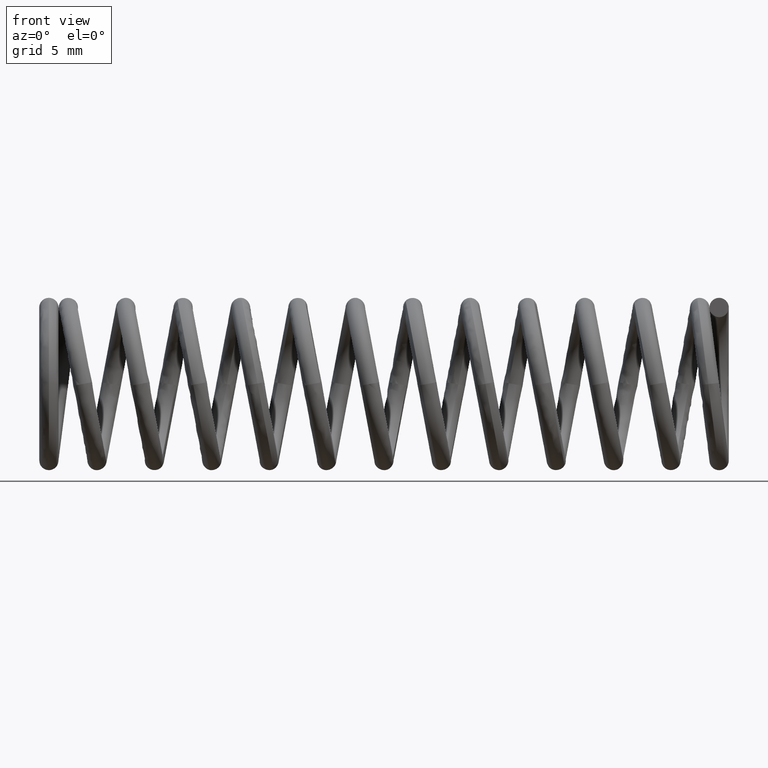
[diagram: clean part render]
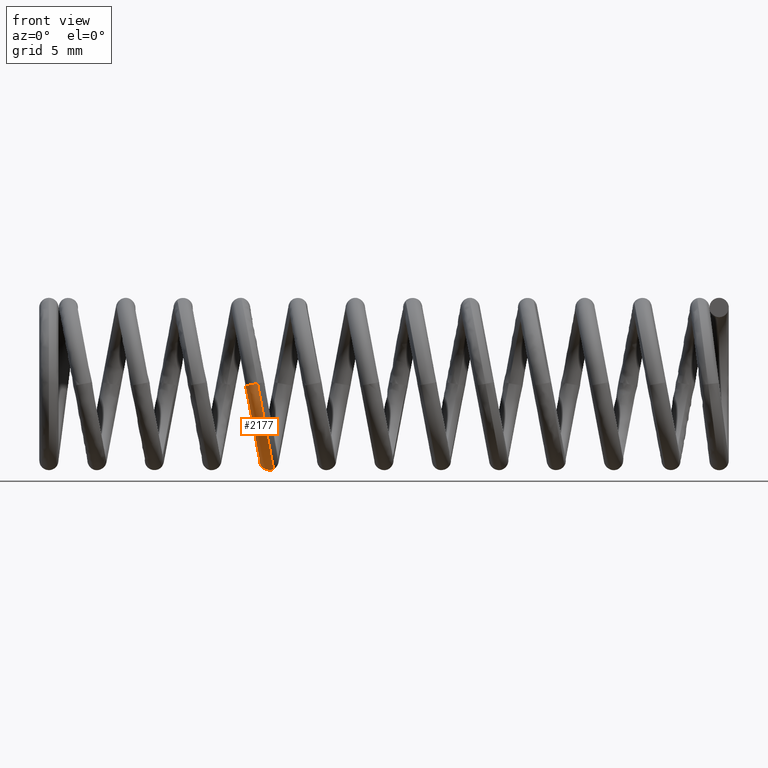
[diagram: same view with one face highlighted and labeled with its STEP entity id]
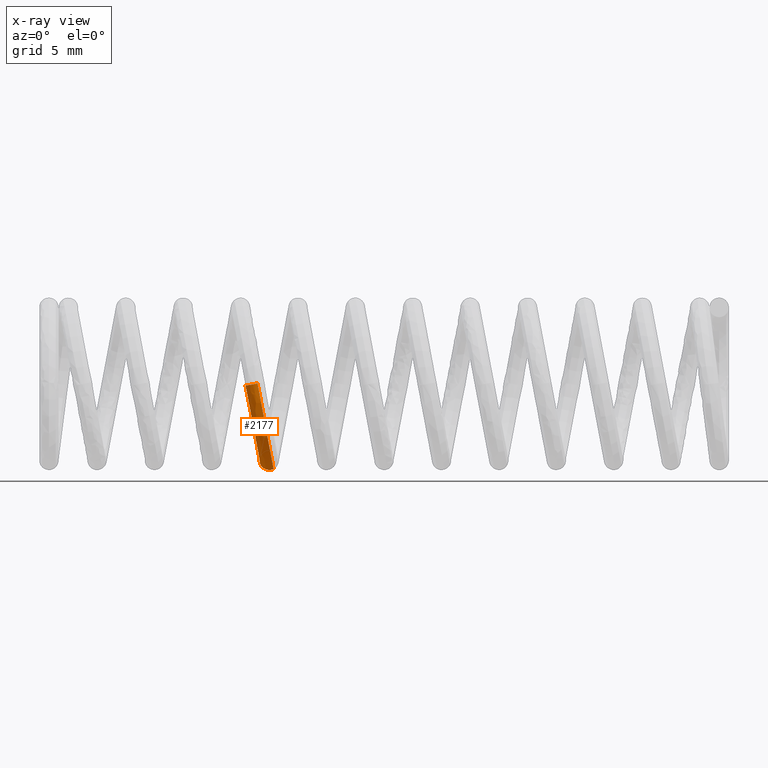
[diagram: x-ray of the same camera — body ghosted, the highlighted face saturated]
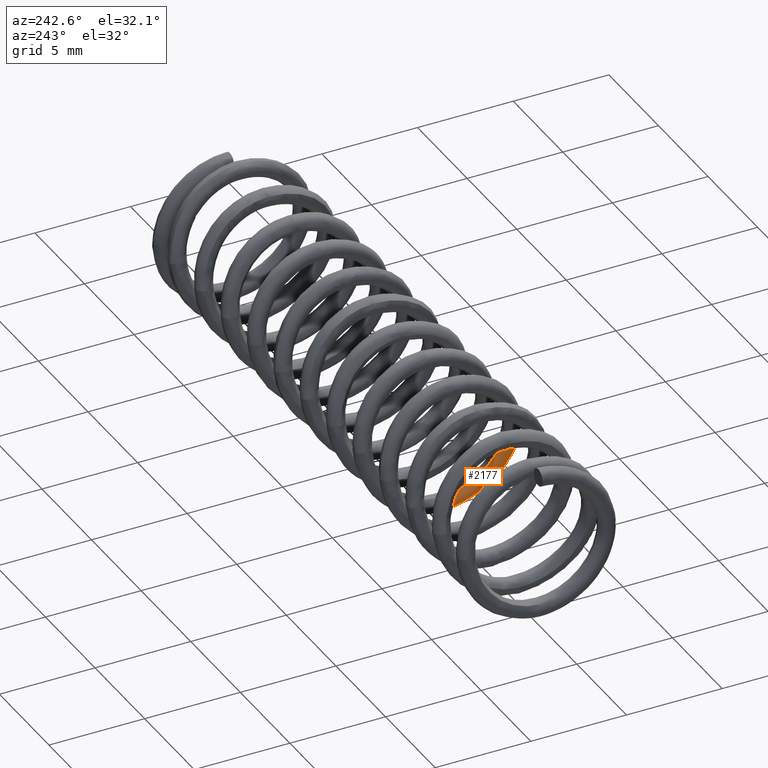
[diagram: same view with one face highlighted and labeled with its STEP entity id]
A machine part, front view. The second image highlights one B-rep face of the part: STEP entity #2177.
The next image is the same camera in x-ray: the body ghosted, the highlighted face saturated — about 0% of this face is hidden behind the body in this view.
A second angle (auxiliary view) of the same face is appended — the face is thin or edge-on in the first view.
In plain terms, the highlighted face is a freeform B-spline surface patch.
Its self-contained STEP definition (entity closure, byte-faithful):
#2177=ADVANCED_FACE('',(#3027),#3026,.T.);
#3026=( BOUNDED_SURFACE() B_SPLINE_SURFACE( 3,3,((#6223,#6224,#6225,#6226,#6227,#6228),(#6229,#6230,#6231,#6232,#6233,#6234),(#6235,#6236,#6237,#6238,#6239,#6240),(#6241,#6242,#6243,#6244,#6245,#6246),(#6247,#6248,#6249,#6250,#6251,#6252),(#6253,#6254,#6255,#6256,#6257,#6258)), .UNSPECIFIED.,.F.,.F.,.F.) B_SPLINE_SURFACE_WITH_KNOTS((4,2,4),(4,2,4),(5.00000000000E-01,7.50000000000E-01,1.00000000000E+00),(3.26745105537E-01,3.36370377522E-01,3.45995649507E-01), .UNSPECIFIED. ) GEOMETRIC_REPRESENTATION_ITEM() RATIONAL_B_SPLINE_SURFACE(((1.00000000000E+00,1.00000000000E+00,1.00000000000E+00,1.00000000000E+00,1.00000000000E+00,1.00000000000E+00),(1.00000000000E+00,1.00000000000E+00,1.00000000000E+00,1.00000000000E+00,1.00000000000E+00,1.00000000000E+00),(1.00000000000E+00,1.00000000000E+00,1.00000000000E+00,1.00000000000E+00,1.00000000000E+00,1.00000000000E+00),(1.00000000000E+00,1.00000000000E+00,1.00000000000E+00,1.00000000000E+00,1.00000000000E+00,1.00000000000E+00),(1.00000000000E+00,1.00000000000E+00,1.00000000000E+00,1.00000000000E+00,1.00000000000E+00,1.00000000000E+00),(1.00000000000E+00,1.00000000000E+00,1.00000000000E+00,1.00000000000E+00,1.00000000000E+00,1.00000000000E+00))) REPRESENTATION_ITEM('') SURFACE() );
#3027=FACE_OUTER_BOUND('',#6259,.T.);
#6223=CARTESIAN_POINT('',(-2.14197527614E+01,-3.98212175902E+00,2.31528256215E-02));
#6224=CARTESIAN_POINT('',(-2.12244826400E+01,-3.98212175902E+00,-1.01784352133E+00));
#6225=CARTESIAN_POINT('',(-2.10311850241E+01,-3.55487822266E+00,-2.04832432711E+00));
#6226=CARTESIAN_POINT('',(-2.07548935773E+01,-2.08195248911E+00,-3.52125006032E+00));
#6227=CARTESIAN_POINT('',(-2.06741757511E+01,-1.04746863692E+00,-3.95156147510E+00));
#6228=CARTESIAN_POINT('',(-2.06741757511E+01,-1.05975375182E-17,-3.95156147510E+00));
#6229=CARTESIAN_POINT('',(-2.16421326493E+01,-4.04787622925E+00,-1.85611994339E-02));
#6230=CARTESIAN_POINT('',(-2.14437420681E+01,-4.04787622925E+00,-1.07619289863E+00));
#6231=CARTESIAN_POINT('',(-2.12473303745E+01,-3.61383882294E+00,-2.12327503302E+00));
#6232=CARTESIAN_POINT('',(-2.09665126360E+01,-2.11678316559E+00,-3.62033068998E+00));
#6233=CARTESIAN_POINT('',(-2.08844328478E+01,-1.06506789752E+00,-4.05790280313E+00));
#6234=CARTESIAN_POINT('',(-2.08844328478E+01,7.25553002425E-18,-4.05790280313E+00));
#6235=CARTESIAN_POINT('',(-2.19032688159E+01,-3.90184021154E+00,-6.75451282588E-02));
#6236=CARTESIAN_POINT('',(-2.17118085547E+01,-3.90184021154E+00,-1.08823088924E+00));
#6237=CARTESIAN_POINT('',(-2.15223130069E+01,-3.48289150882E+00,-2.09844264947E+00));
#6238=CARTESIAN_POINT('',(-2.12515478415E+01,-2.03942670192E+00,-3.54190745612E+00));
#6239=CARTESIAN_POINT('',(-2.11724928743E+01,-1.02598118715E+00,-3.96335407282E+00));
#6240=CARTESIAN_POINT('',(-2.11724928743E+01,2.85479897159E-17,-3.96335407282E+00));
#6241=CARTESIAN_POINT('',(-2.20325234219E+01,-3.44932336367E+00,-9.17907105529E-02));
#6242=CARTESIAN_POINT('',(-2.18625379080E+01,-3.44932336367E+00,-9.97993347677E-01));
#6243=CARTESIAN_POINT('',(-2.16944731860E+01,-3.07712951427E+00,-1.89395613182E+00));
#6244=CARTESIAN_POINT('',(-2.14548575873E+01,-1.79972485542E+00,-3.17136079086E+00));
#6245=CARTESIAN_POINT('',(-2.13851755304E+01,-9.04864525336E-01,-3.54283987944E+00));
#6246=CARTESIAN_POINT('',(-2.13851755304E+01,3.96457050536E-17,-3.54283987944E+00));
#6247=CARTESIAN_POINT('',(-2.18889907627E+01,-3.18363271121E+00,-6.48668506769E-02));
#6248=CARTESIAN_POINT('',(-2.17316139277E+01,-3.18363271121E+00,-9.03851889126E-01));
#6249=CARTESIAN_POINT('',(-2.15761320966E+01,-2.83889049713E+00,-1.73273455207E+00));
#6250=CARTESIAN_POINT('',(-2.13548056484E+01,-1.65898636073E+00,-2.91263868892E+00));
#6251=CARTESIAN_POINT('',(-2.12906268001E+01,-8.33752112496E-01,-3.25477985293E+00));
#6252=CARTESIAN_POINT('',(-2.12906268001E+01,2.84506050606E-17,-3.25477985293E+00));
#6253=CARTESIAN_POINT('',(-2.16666108749E+01,-3.11787824098E+00,-2.31528256215E-02));
#6254=CARTESIAN_POINT('',(-2.15123544997E+01,-3.11787824098E+00,-8.45502511830E-01));
#6255=CARTESIAN_POINT('',(-2.13599867462E+01,-2.77992989684E+00,-1.65778384616E+00));
#6256=CARTESIAN_POINT('',(-2.11431865897E+01,-1.62415568425E+00,-2.81355805926E+00));
#6257=CARTESIAN_POINT('',(-2.10803697034E+01,-8.16152851891E-01,-3.14843852490E+00));
#6258=CARTESIAN_POINT('',(-2.10803697034E+01,1.05975375182E-17,-3.14843852490E+00));
#6259=EDGE_LOOP('',(#7232,#7233,#7234,#7235));
#7232=ORIENTED_EDGE('',*,*,#7363,.T.);
#7233=ORIENTED_EDGE('',*,*,#7494,.T.);
#7234=ORIENTED_EDGE('',*,*,#7368,.F.);
#7235=ORIENTED_EDGE('',*,*,#7495,.F.);
#7363=EDGE_CURVE('',#7837,#7836,#7870,.T.);
#7368=EDGE_CURVE('',#7891,#7884,#7904,.T.);
#7494=EDGE_CURVE('',#7836,#7884,#8722,.T.);
#7495=EDGE_CURVE('',#7837,#7891,#8728,.T.);
#7836=VERTEX_POINT('',#9152);
#7837=VERTEX_POINT('',#9153);
#7870=(BOUNDED_CURVE() B_SPLINE_CURVE(3,(#9186,#9187,#9188,#9189,#9190,#9191),.UNSPECIFIED.,.F.,.F.) B_SPLINE_CURVE_WITH_KNOTS((4,2,4),(5.00000000000E-01,7.50000000000E-01,1.00000000000E+00),.UNSPECIFIED.) CURVE() GEOMETRIC_REPRESENTATION_ITEM() RATIONAL_B_SPLINE_CURVE((1.00000000000E+00,1.00000000000E+00,1.00000000000E+00,1.00000000000E+00,1.00000000000E+00,1.00000000000E+00)) REPRESENTATION_ITEM('') );
#7884=VERTEX_POINT('',#9200);
#7891=VERTEX_POINT('',#9207);
#7904=(BOUNDED_CURVE() B_SPLINE_CURVE(3,(#9220,#9221,#9222,#9223,#9224,#9225),.UNSPECIFIED.,.F.,.F.) B_SPLINE_CURVE_WITH_KNOTS((4,2,4),(5.00000000000E-01,7.50000000000E-01,1.00000000000E+00),.UNSPECIFIED.) CURVE() GEOMETRIC_REPRESENTATION_ITEM() RATIONAL_B_SPLINE_CURVE((1.00000000000E+00,1.00000000000E+00,1.00000000000E+00,1.00000000000E+00,1.00000000000E+00,1.00000000000E+00)) REPRESENTATION_ITEM('') );
#8722=(BOUNDED_CURVE() B_SPLINE_CURVE(3,(#10046,#10047,#10048,#10049,#10050,#10051),.UNSPECIFIED.,.F.,.F.) B_SPLINE_CURVE_WITH_KNOTS((4,2,4),(3.26745105537E-01,3.36370377522E-01,3.45995649507E-01),.UNSPECIFIED.) CURVE() GEOMETRIC_REPRESENTATION_ITEM() RATIONAL_B_SPLINE_CURVE((1.00000000000E+00,1.00000000000E+00,1.00000000000E+00,1.00000000000E+00,1.00000000000E+00,1.00000000000E+00)) REPRESENTATION_ITEM('') );
#8728=(BOUNDED_CURVE() B_SPLINE_CURVE(3,(#10052,#10053,#10054,#10055,#10056,#10057),.UNSPECIFIED.,.F.,.F.) B_SPLINE_CURVE_WITH_KNOTS((4,2,4),(3.26745105537E-01,3.36370377522E-01,3.45995649507E-01),.UNSPECIFIED.) CURVE() GEOMETRIC_REPRESENTATION_ITEM() RATIONAL_B_SPLINE_CURVE((1.00000000000E+00,1.00000000000E+00,1.00000000000E+00,1.00000000000E+00,1.00000000000E+00,1.00000000000E+00)) REPRESENTATION_ITEM('') );
#9152=CARTESIAN_POINT('',(-2.16666108749E+01,-3.11787824098E+00,-2.31528256215E-02));
#9153=CARTESIAN_POINT('',(-2.14197527614E+01,-3.98212175902E+00,2.31528256215E-02));
#9186=CARTESIAN_POINT('',(-2.14197527614E+01,-3.98212175902E+00,2.31528256215E-02));
#9187=CARTESIAN_POINT('',(-2.16421326493E+01,-4.04787622925E+00,-1.85611994339E-02));
#9188=CARTESIAN_POINT('',(-2.19032688159E+01,-3.90184021154E+00,-6.75451282588E-02));
#9189=CARTESIAN_POINT('',(-2.20325234219E+01,-3.44932336367E+00,-9.17907105529E-02));
#9190=CARTESIAN_POINT('',(-2.18889907627E+01,-3.18363271121E+00,-6.48668506769E-02));
#9191=CARTESIAN_POINT('',(-2.16666108749E+01,-3.11787824098E+00,-2.31528256215E-02));
#9200=CARTESIAN_POINT('',(-2.10803697034E+01,-1.84521485109E-16,-3.14843852490E+00));
#9207=CARTESIAN_POINT('',(-2.06741757511E+01,-4.89858719659E-16,-3.95156147510E+00));
#9220=CARTESIAN_POINT('',(-2.06741757511E+01,-4.89858719659E-16,-3.95156147510E+00));
#9221=CARTESIAN_POINT('',(-2.08844328478E+01,-4.89858719659E-16,-4.05790280313E+00));
#9222=CARTESIAN_POINT('',(-2.11724928743E+01,-4.63604674103E-16,-3.96335407282E+00));
#9223=CARTESIAN_POINT('',(-2.13851755304E+01,-4.05894553291E-16,-3.54283987944E+00));
#9224=CARTESIAN_POINT('',(-2.12906268001E+01,-3.79640507736E-16,-3.25477985293E+00));
#9225=CARTESIAN_POINT('',(-2.10803697034E+01,-3.79640507736E-16,-3.14843852490E+00));
#10046=CARTESIAN_POINT('',(-2.16666108749E+01,-3.11787824098E+00,-2.31528256215E-02));
#10047=CARTESIAN_POINT('',(-2.15123544997E+01,-3.11787824098E+00,-8.45502511830E-01));
#10048=CARTESIAN_POINT('',(-2.13599867462E+01,-2.77992989684E+00,-1.65778384616E+00));
#10049=CARTESIAN_POINT('',(-2.11431865897E+01,-1.62415568425E+00,-2.81355805926E+00));
#10050=CARTESIAN_POINT('',(-2.10803697034E+01,-8.16152851891E-01,-3.14843852490E+00));
#10051=CARTESIAN_POINT('',(-2.10803697034E+01,1.05975375182E-17,-3.14843852490E+00));
#10052=CARTESIAN_POINT('',(-2.14197527614E+01,-3.98212175902E+00,2.31528256215E-02));
#10053=CARTESIAN_POINT('',(-2.12244826400E+01,-3.98212175902E+00,-1.01784352133E+00));
#10054=CARTESIAN_POINT('',(-2.10311850241E+01,-3.55487822266E+00,-2.04832432711E+00));
#10055=CARTESIAN_POINT('',(-2.07548935773E+01,-2.08195248911E+00,-3.52125006032E+00));
#10056=CARTESIAN_POINT('',(-2.06741757511E+01,-1.04746863692E+00,-3.95156147510E+00));
#10057=CARTESIAN_POINT('',(-2.06741757511E+01,-1.05975375182E-17,-3.95156147510E+00));